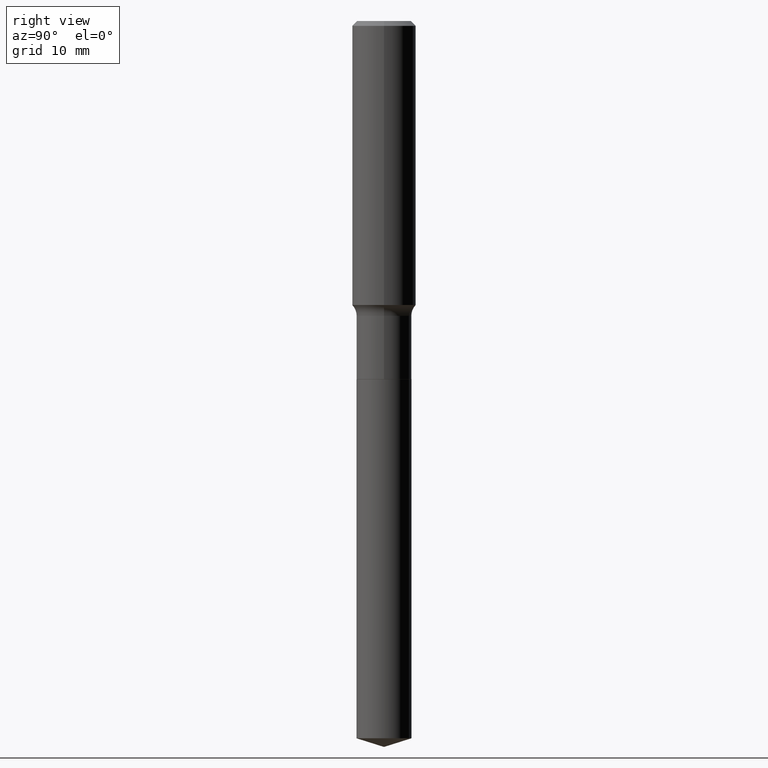
[diagram: clean part render]
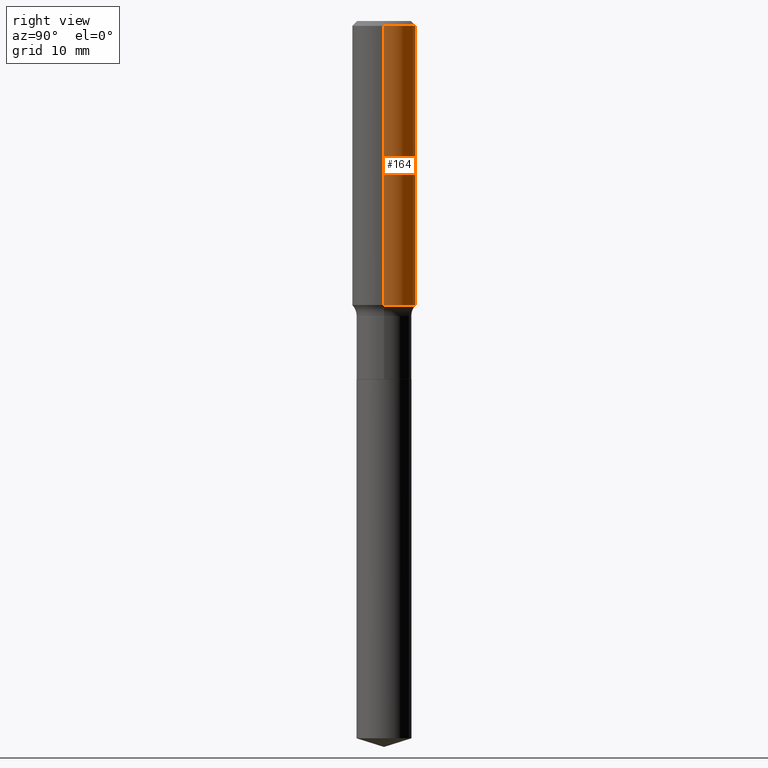
[diagram: same view with one face highlighted and labeled with its STEP entity id]
A machine part, right view. The second image highlights one B-rep face of the part: STEP entity #164.
In plain terms, the highlighted cylindrical surface (edge-blend (fillet) strip) has radius 4.0005 mm, axis along (-0, 0, 1).
Its self-contained STEP definition (entity closure, byte-faithful):
#1 = VERTEX_POINT ( 'NONE', #352 ) ;
#2 = CARTESIAN_POINT ( 'NONE',  ( -0.1575000000000001676, -3.773744865766396882E-15, -1.401367843543948277 ) ) ;
#36 = CARTESIAN_POINT ( 'NONE',  ( 0.1575000000000000011, -1.182302868365756679E-15, -0.02362500000000014588 ) ) ;
#49 = VECTOR ( 'NONE', #329, 39.37007874015748143 ) ;
#56 = AXIS2_PLACEMENT_3D ( 'NONE', #381, #147, #453 ) ;
#65 = CARTESIAN_POINT ( 'NONE',  ( 0.1575000000000000844, -1.099816621735587677E-15, 7.679978421878603638E-30 ) ) ;
#74 = ORIENTED_EDGE ( 'NONE', *, *, #468, .T. ) ;
#89 = DIRECTION ( 'NONE',  ( 1.000000000000000000, -6.982962677686267499E-15, 4.876176775795936353E-29 ) ) ;
#95 = EDGE_LOOP ( 'NONE', ( #418, #74, #196, #109 ) ) ;
#101 = LINE ( 'NONE', #65, #49 ) ;
#109 = ORIENTED_EDGE ( 'NONE', *, *, #275, .F. ) ;
#113 = LINE ( 'NONE', #303, #430 ) ;
#123 = CARTESIAN_POINT ( 'NONE',  ( 3.427001347377658773E-29, -4.892849674588556064E-15, -1.401367843543948277 ) ) ;
#125 = DIRECTION ( 'NONE',  ( 1.000000000000000000, -6.982962677686267499E-15, 0.000000000000000000 ) ) ;
#147 = DIRECTION ( 'NONE',  ( -2.445468806185136597E-29, 3.491481338843145583E-15, 1.000000000000000000 ) ) ;
#160 = CYLINDRICAL_SURFACE ( 'NONE', #325, 0.1575000000000000844 ) ;
#164 = ADVANCED_FACE ( 'NONE', ( #199 ), #160, .T. ) ;
#196 = ORIENTED_EDGE ( 'NONE', *, *, #415, .F. ) ;
#199 = FACE_OUTER_BOUND ( 'NONE', #95, .T. ) ;
#268 = CIRCLE ( 'NONE', #56, 0.1575000000000000011 ) ;
#275 = EDGE_CURVE ( 'NONE', #1, #411, #101, .T. ) ;
#296 = CARTESIAN_POINT ( 'NONE',  ( -0.1575000000000000011, -1.368563151787204140E-15, -0.02362500000000014588 ) ) ;
#303 = CARTESIAN_POINT ( 'NONE',  ( -0.1575000000000000844, 1.119104808822158392E-15, -7.747322767151481189E-30 ) ) ;
#325 = AXIS2_PLACEMENT_3D ( 'NONE', #467, #434, #89 ) ;
#329 = DIRECTION ( 'NONE',  ( -2.445468806185136877E-29, 3.491481338843145188E-15, 1.000000000000000000 ) ) ;
#352 = CARTESIAN_POINT ( 'NONE',  ( 0.1575000000000001676, -5.992666296324145122E-15, -1.401367843543948277 ) ) ;
#355 = VERTEX_POINT ( 'NONE', #296 ) ;
#367 = CIRCLE ( 'NONE', #416, 0.1575000000000001676 ) ;
#381 = CARTESIAN_POINT ( 'NONE',  ( 5.777420054612421104E-31, -8.248624663016984002E-17, -0.02362500000000014588 ) ) ;
#400 = VERTEX_POINT ( 'NONE', #2 ) ;
#411 = VERTEX_POINT ( 'NONE', #36 ) ;
#415 = EDGE_CURVE ( 'NONE', #411, #355, #268, .T. ) ;
#416 = AXIS2_PLACEMENT_3D ( 'NONE', #123, #469, #125 ) ;
#418 = ORIENTED_EDGE ( 'NONE', *, *, #489, .T. ) ;
#430 = VECTOR ( 'NONE', #450, 39.37007874015748143 ) ;
#434 = DIRECTION ( 'NONE',  ( -2.445468806185136597E-29, 3.491481338843145583E-15, 1.000000000000000000 ) ) ;
#450 = DIRECTION ( 'NONE',  ( -2.445468806185136877E-29, 3.491481338843145188E-15, 1.000000000000000000 ) ) ;
#453 = DIRECTION ( 'NONE',  ( 1.000000000000000000, -6.982962677686265922E-15, 0.000000000000000000 ) ) ;
#467 = CARTESIAN_POINT ( 'NONE',  ( 0.000000000000000000, 0.000000000000000000, 0.000000000000000000 ) ) ;
#468 = EDGE_CURVE ( 'NONE', #400, #355, #113, .T. ) ;
#469 = DIRECTION ( 'NONE',  ( -2.445468806185136597E-29, 3.491481338843145583E-15, 1.000000000000000000 ) ) ;
#489 = EDGE_CURVE ( 'NONE', #1, #400, #367, .T. ) ;